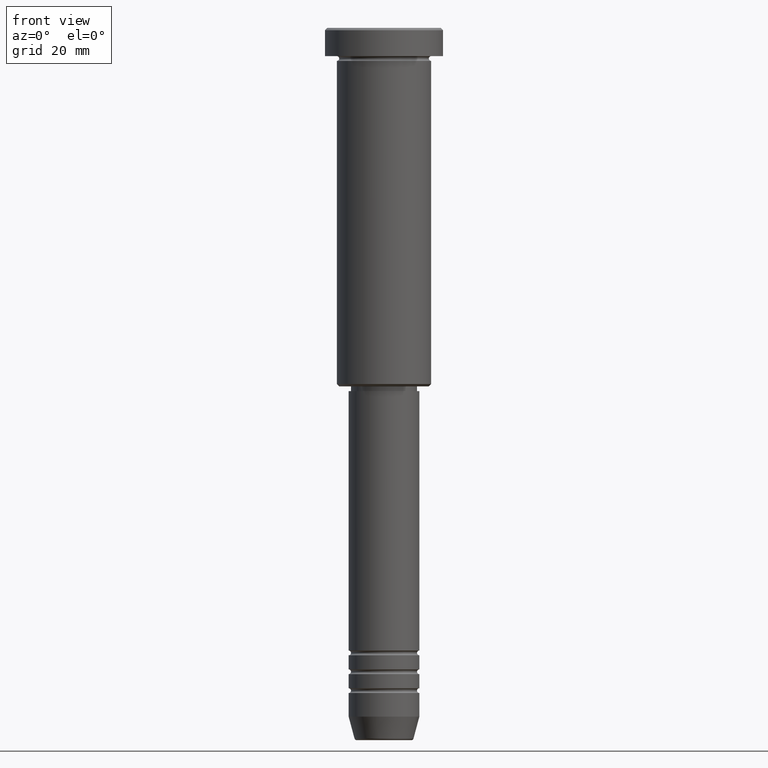
[diagram: clean part render]
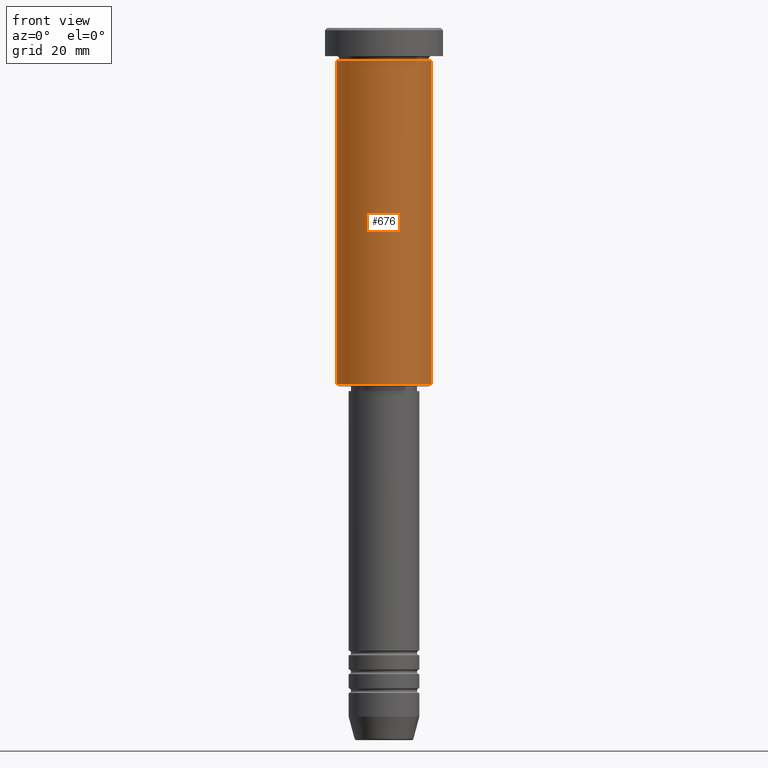
[diagram: same view with one face highlighted and labeled with its STEP entity id]
A machine part, front view. The second image highlights one B-rep face of the part: STEP entity #676.
In plain terms, the highlighted cylindrical surface (partial cylindrical patch) has radius 10 mm, axis along (-0, -0, 1).
Its self-contained STEP definition (entity closure, byte-faithful):
#4 = EDGE_LOOP ( 'NONE', ( #708, #949, #882, #906 ) ) ;
#12 = CARTESIAN_POINT ( 'NONE',  ( -10.00000000000000000, 1.224646799147353256E-15, -6.999999999999996447 ) ) ;
#15 = VECTOR ( 'NONE', #1053, 1000.000000000000000 ) ;
#19 = CARTESIAN_POINT ( 'NONE',  ( 10.00000000000000000, 0.000000000000000000, -6.999999999999996447 ) ) ;
#81 = DIRECTION ( 'NONE',  ( 1.000000000000000000, 0.000000000000000000, 0.000000000000000000 ) ) ;
#86 = CYLINDRICAL_SURFACE ( 'NONE', #149, 10.00000000000000000 ) ;
#130 = EDGE_CURVE ( 'NONE', #467, #961, #589, .T. ) ;
#149 = AXIS2_PLACEMENT_3D ( 'NONE', #902, #1161, #81 ) ;
#181 = CARTESIAN_POINT ( 'NONE',  ( 10.00000000000000000, 0.000000000000000000, -75.50000000000000000 ) ) ;
#356 = VERTEX_POINT ( 'NONE', #181 ) ;
#361 = EDGE_CURVE ( 'NONE', #356, #1055, #731, .T. ) ;
#367 = DIRECTION ( 'NONE',  ( -1.000000000000000000, 0.000000000000000000, 0.000000000000000000 ) ) ;
#405 = CARTESIAN_POINT ( 'NONE',  ( 10.00000000000000000, 0.000000000000000000, 0.000000000000000000 ) ) ;
#426 = CARTESIAN_POINT ( 'NONE',  ( -10.00000000000000000, 1.224646799147353256E-15, 0.000000000000000000 ) ) ;
#467 = VERTEX_POINT ( 'NONE', #575 ) ;
#575 = CARTESIAN_POINT ( 'NONE',  ( -10.00000000000000000, 1.224646799147353256E-15, -75.50000000000000000 ) ) ;
#584 = CIRCLE ( 'NONE', #990, 10.00000000000000000 ) ;
#589 = LINE ( 'NONE', #426, #15 ) ;
#601 = EDGE_CURVE ( 'NONE', #961, #1055, #584, .T. ) ;
#676 = ADVANCED_FACE ( 'NONE', ( #983 ), #86, .T. ) ;
#691 = DIRECTION ( 'NONE',  ( 1.000000000000000000, 0.000000000000000000, 0.000000000000000000 ) ) ;
#708 = ORIENTED_EDGE ( 'NONE', *, *, #130, .F. ) ;
#731 = LINE ( 'NONE', #405, #820 ) ;
#769 = CARTESIAN_POINT ( 'NONE',  ( 0.000000000000000000, 0.000000000000000000, -6.999999999999996447 ) ) ;
#805 = EDGE_CURVE ( 'NONE', #467, #356, #1102, .T. ) ;
#811 = CARTESIAN_POINT ( 'NONE',  ( 0.000000000000000000, 0.000000000000000000, -75.50000000000000000 ) ) ;
#819 = DIRECTION ( 'NONE',  ( -0.000000000000000000, -0.000000000000000000, 1.000000000000000000 ) ) ;
#820 = VECTOR ( 'NONE', #1025, 1000.000000000000000 ) ;
#859 = AXIS2_PLACEMENT_3D ( 'NONE', #811, #819, #367 ) ;
#882 = ORIENTED_EDGE ( 'NONE', *, *, #361, .T. ) ;
#902 = CARTESIAN_POINT ( 'NONE',  ( 0.000000000000000000, 0.000000000000000000, 0.000000000000000000 ) ) ;
#906 = ORIENTED_EDGE ( 'NONE', *, *, #601, .F. ) ;
#949 = ORIENTED_EDGE ( 'NONE', *, *, #805, .T. ) ;
#961 = VERTEX_POINT ( 'NONE', #12 ) ;
#983 = FACE_OUTER_BOUND ( 'NONE', #4, .T. ) ;
#990 = AXIS2_PLACEMENT_3D ( 'NONE', #769, #1135, #691 ) ;
#1025 = DIRECTION ( 'NONE',  ( -0.000000000000000000, -0.000000000000000000, 1.000000000000000000 ) ) ;
#1053 = DIRECTION ( 'NONE',  ( -0.000000000000000000, -0.000000000000000000, 1.000000000000000000 ) ) ;
#1055 = VERTEX_POINT ( 'NONE', #19 ) ;
#1102 = CIRCLE ( 'NONE', #859, 10.00000000000000000 ) ;
#1135 = DIRECTION ( 'NONE',  ( -0.000000000000000000, -0.000000000000000000, 1.000000000000000000 ) ) ;
#1161 = DIRECTION ( 'NONE',  ( -0.000000000000000000, -0.000000000000000000, 1.000000000000000000 ) ) ;